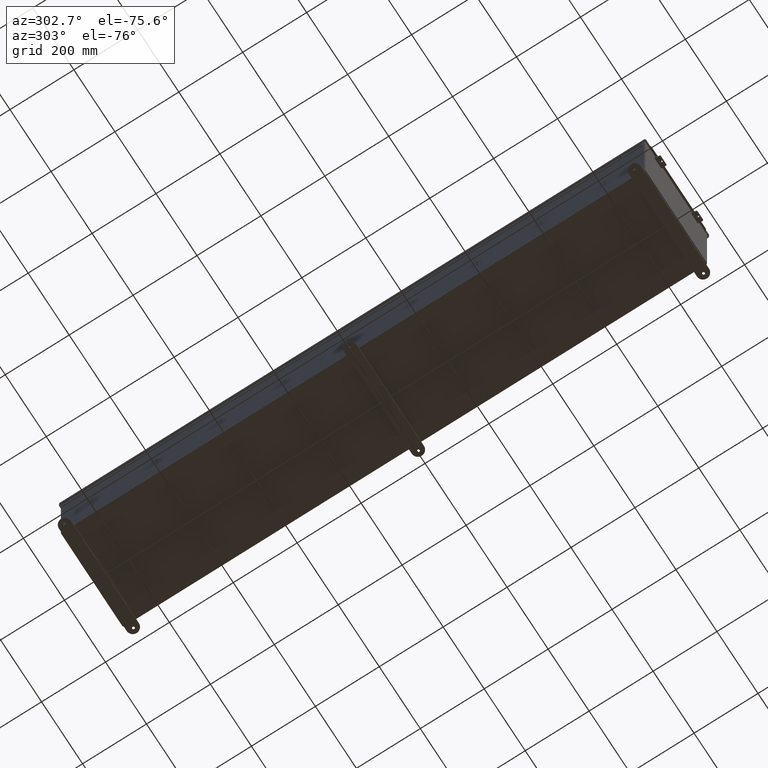
[diagram: clean part render]
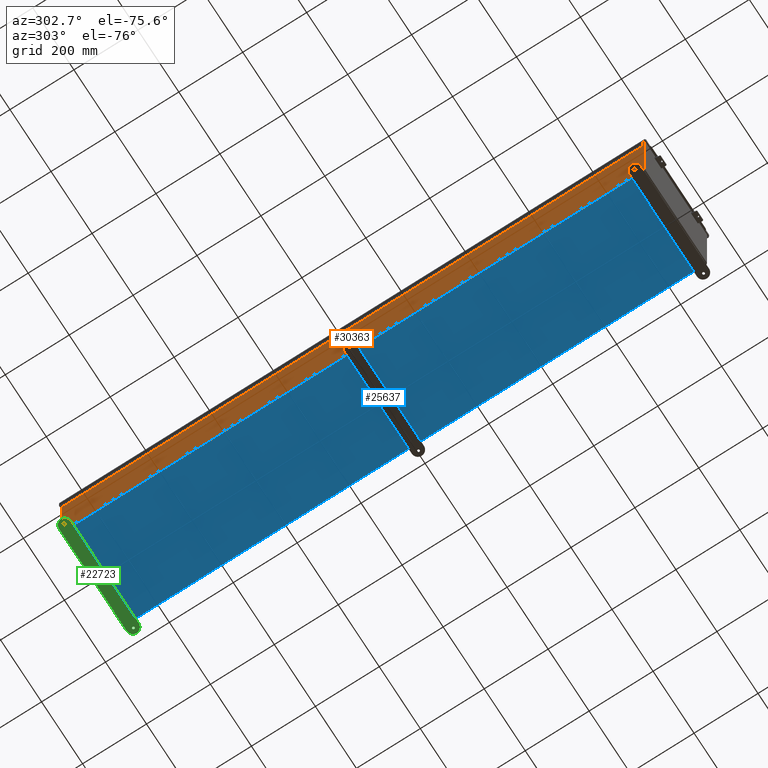
[diagram: same view with three faces highlighted in distinct colors, each labeled with its STEP entity id]
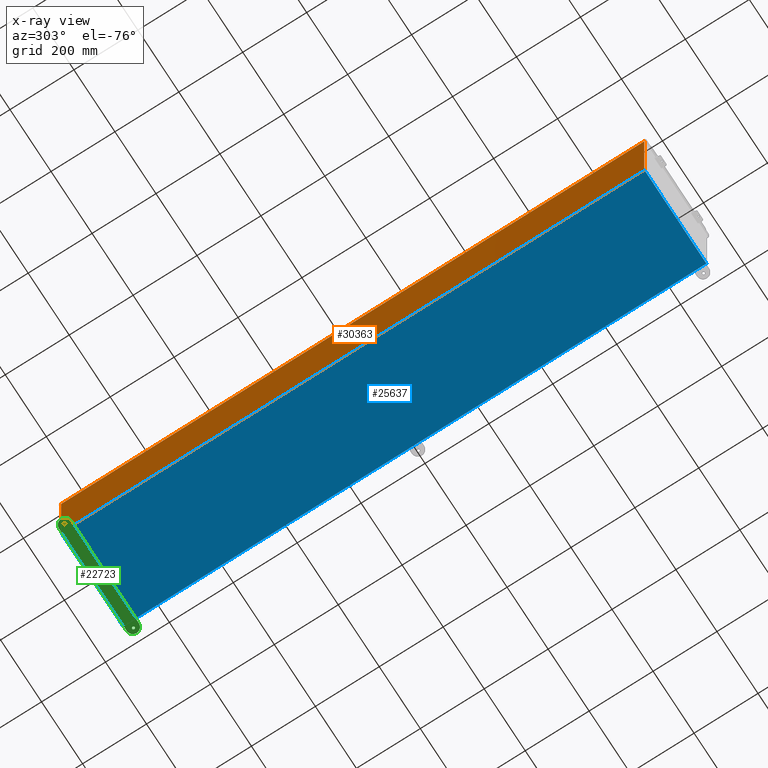
[diagram: x-ray of the same camera — body ghosted, the three highlighted faces saturated]
A machine part, auxiliary view with three faces highlighted in distinct colors.
The next image is the same camera in x-ray (body ghosted, the three faces saturated) — at least one of them is partly hidden behind the body in this view.
Their STEP definitions:

[orange] entity #30363 — the highlighted planar face has unit normal (1, 0, 0).
#226 = CARTESIAN_POINT ( 'NONE',  ( -6.000000000000003600, -35.92529999999999300, 0.01299999999999984300 ) ) ;
#1459 = AXIS2_PLACEMENT_3D ( 'NONE', #49373, #25940, #2566 ) ;
#1661 = EDGE_CURVE ( 'NONE', #43706, #24146, #9807, .T. ) ;
#2566 = DIRECTION ( 'NONE',  ( 3.503965158194251300E-015, 0.0000000000000000000, -1.000000000000000000 ) ) ;
#5055 = VERTEX_POINT ( 'NONE', #226 ) ;
#8845 = ORIENTED_EDGE ( 'NONE', *, *, #1661, .T. ) ;
#8897 = CARTESIAN_POINT ( 'NONE',  ( -6.000000000000041700, -35.92529999999999300, 11.83760000000000000 ) ) ;
#9807 = LINE ( 'NONE', #21372, #31812 ) ;
#10501 = CARTESIAN_POINT ( 'NONE',  ( -6.000000000000045300, 35.92530000000001400, 11.83760000000000000 ) ) ;
#12172 = ORIENTED_EDGE ( 'NONE', *, *, #27853, .F. ) ;
#12729 = DIRECTION ( 'NONE',  ( -0.0000000000000000000, 1.000000000000000000, -0.0000000000000000000 ) ) ;
#14883 = ORIENTED_EDGE ( 'NONE', *, *, #37825, .T. ) ;
#16356 = LINE ( 'NONE', #43945, #25499 ) ;
#16835 = CARTESIAN_POINT ( 'NONE',  ( -6.000000000000003600, 35.92530000000001400, 0.01299999999999984300 ) ) ;
#18017 = ORIENTED_EDGE ( 'NONE', *, *, #35672, .T. ) ;
#19184 = CARTESIAN_POINT ( 'NONE',  ( -6.000000000000041700, -35.92529999999996400, 11.83760000000000000 ) ) ;
#21253 = VECTOR ( 'NONE', #41831, 39.37007874015748100 ) ;
#21372 = CARTESIAN_POINT ( 'NONE',  ( -6.000000000000003600, 35.92530000000001400, -2.128280327564064900E-014 ) ) ;
#22772 = VERTEX_POINT ( 'NONE', #19184 ) ;
#24146 = VERTEX_POINT ( 'NONE', #16835 ) ;
#25263 = DIRECTION ( 'NONE',  ( 3.503965158194252100E-015, 0.0000000000000000000, -1.000000000000000000 ) ) ;
#25499 = VECTOR ( 'NONE', #12729, 39.37007874015748100 ) ;
#25940 = DIRECTION ( 'NONE',  ( 1.000000000000000000, 0.0000000000000000000, 3.503965158194251300E-015 ) ) ;
#27853 = EDGE_CURVE ( 'NONE', #5055, #24146, #16356, .T. ) ;
#30363 = ADVANCED_FACE ( 'NONE', ( #49096 ), #41488, .F. ) ;
#31640 = LINE ( 'NONE', #45745, #21253 ) ;
#31812 = VECTOR ( 'NONE', #25263, 39.37007874015748100 ) ;
#32302 = DIRECTION ( 'NONE',  ( 0.0000000000000000000, 1.000000000000000000, 0.0000000000000000000 ) ) ;
#35672 = EDGE_CURVE ( 'NONE', #5055, #22772, #31640, .T. ) ;
#37825 = EDGE_CURVE ( 'NONE', #22772, #43706, #39936, .T. ) ;
#38575 = EDGE_LOOP ( 'NONE', ( #14883, #8845, #12172, #18017 ) ) ;
#38694 = VECTOR ( 'NONE', #32302, 39.37007874015748100 ) ;
#39936 = LINE ( 'NONE', #8897, #38694 ) ;
#41488 = PLANE ( 'NONE',  #1459 ) ;
#41831 = DIRECTION ( 'NONE',  ( -3.503965158194252100E-015, 0.0000000000000000000, 1.000000000000000000 ) ) ;
#43706 = VERTEX_POINT ( 'NONE', #10501 ) ;
#43945 = CARTESIAN_POINT ( 'NONE',  ( -6.000000000000003600, 35.92530000000001400, 0.01299999999999984300 ) ) ;
#45745 = CARTESIAN_POINT ( 'NONE',  ( -6.000000000000003600, -35.92529999999999300, -2.128280327564064900E-014 ) ) ;
#49096 = FACE_OUTER_BOUND ( 'NONE', #38575, .T. ) ;
#49373 = CARTESIAN_POINT ( 'NONE',  ( -6.000000000000003600, 0.0000000000000000000, -2.128280327564064900E-014 ) ) ;

[blue] entity #25637 — the highlighted planar face has unit normal (0, 0, -1).
#8 = FACE_OUTER_BOUND ( 'NONE', #44867, .T. ) ;
#3283 = VECTOR ( 'NONE', #31354, 39.37007874015748100 ) ;
#3633 = ORIENTED_EDGE ( 'NONE', *, *, #13654, .T. ) ;
#3835 = LINE ( 'NONE', #5227, #13002 ) ;
#5227 = CARTESIAN_POINT ( 'NONE',  ( -6.000000000000003600, -35.92529999999999300, -0.07470000000000000300 ) ) ;
#9035 = VERTEX_POINT ( 'NONE', #28716 ) ;
#12279 = DIRECTION ( 'NONE',  ( -1.000000000000000000, 0.0000000000000000000, -0.0000000000000000000 ) ) ;
#12393 = DIRECTION ( 'NONE',  ( -1.000000000000000000, -0.0000000000000000000, -0.0000000000000000000 ) ) ;
#13002 = VECTOR ( 'NONE', #28604, 39.37007874015748100 ) ;
#13111 = EDGE_CURVE ( 'NONE', #50163, #16119, #27517, .T. ) ;
#13434 = LINE ( 'NONE', #15756, #22579 ) ;
#13654 = EDGE_CURVE ( 'NONE', #50163, #9035, #13434, .T. ) ;
#13668 = LINE ( 'NONE', #27405, #3283 ) ;
#14004 = CARTESIAN_POINT ( 'NONE',  ( 5.912299999999996600, 35.92530000000001400, -0.07469999999999535300 ) ) ;
#14710 = VECTOR ( 'NONE', #12393, 39.37007874015748100 ) ;
#15756 = CARTESIAN_POINT ( 'NONE',  ( 5.912299999999996600, 35.92530000000001400, -0.07469999999999535300 ) ) ;
#16119 = VERTEX_POINT ( 'NONE', #38731 ) ;
#16143 = AXIS2_PLACEMENT_3D ( 'NONE', #31741, #35631, #12279 ) ;
#22579 = VECTOR ( 'NONE', #46799, 39.37007874015748100 ) ;
#23824 = CARTESIAN_POINT ( 'NONE',  ( -6.000000000000003600, 35.92530000000001400, -0.07470000000000000300 ) ) ;
#23957 = EDGE_CURVE ( 'NONE', #46556, #16119, #13668, .T. ) ;
#25637 = ADVANCED_FACE ( 'NONE', ( #8 ), #47254, .T. ) ;
#27405 = CARTESIAN_POINT ( 'NONE',  ( -5.912300000000003700, -35.92529999999999300, -0.07469999999999994700 ) ) ;
#27517 = LINE ( 'NONE', #23824, #14710 ) ;
#28604 = DIRECTION ( 'NONE',  ( 1.000000000000000000, 0.0000000000000000000, 0.0000000000000000000 ) ) ;
#28716 = CARTESIAN_POINT ( 'NONE',  ( 5.912299999999996600, -35.92529999999999300, -0.07470000000000000300 ) ) ;
#31354 = DIRECTION ( 'NONE',  ( -0.0000000000000000000, 1.000000000000000000, -0.0000000000000000000 ) ) ;
#31741 = CARTESIAN_POINT ( 'NONE',  ( 0.0000000000000000000, 0.0000000000000000000, -0.07470000000000000300 ) ) ;
#33516 = ORIENTED_EDGE ( 'NONE', *, *, #13111, .F. ) ;
#35631 = DIRECTION ( 'NONE',  ( 0.0000000000000000000, 0.0000000000000000000, -1.000000000000000000 ) ) ;
#38731 = CARTESIAN_POINT ( 'NONE',  ( -5.912300000000003700, 35.92530000000001400, -0.07470000000000000300 ) ) ;
#40172 = EDGE_CURVE ( 'NONE', #46556, #9035, #3835, .T. ) ;
#41355 = ORIENTED_EDGE ( 'NONE', *, *, #40172, .F. ) ;
#44166 = CARTESIAN_POINT ( 'NONE',  ( -5.912300000000003700, -35.92529999999999300, -0.07469999999999994700 ) ) ;
#44867 = EDGE_LOOP ( 'NONE', ( #33516, #3633, #41355, #45594 ) ) ;
#45594 = ORIENTED_EDGE ( 'NONE', *, *, #23957, .T. ) ;
#46556 = VERTEX_POINT ( 'NONE', #44166 ) ;
#46799 = DIRECTION ( 'NONE',  ( -0.0000000000000000000, -1.000000000000000000, -8.208677865577646300E-017 ) ) ;
#47254 = PLANE ( 'NONE',  #16143 ) ;
#50163 = VERTEX_POINT ( 'NONE', #14004 ) ;

[green] entity #22723 — the highlighted planar face has unit normal (0, -0, 1).
#2133 = EDGE_LOOP ( 'NONE', ( #27080, #48214, #11199, #39003, #36755 ) ) ;
#2596 = VERTEX_POINT ( 'NONE', #8961 ) ;
#3121 = AXIS2_PLACEMENT_3D ( 'NONE', #28590, #5217, #32527 ) ;
#3258 = DIRECTION ( 'NONE',  ( 1.000000000000000000, 0.0000000000000000000, 0.0000000000000000000 ) ) ;
#3503 = CARTESIAN_POINT ( 'NONE',  ( 6.500000000000000000, -0.3379059350503891300, 0.0000000000000000000 ) ) ;
#3546 = EDGE_CURVE ( 'NONE', #32158, #41940, #46923, .T. ) ;
#3615 = CARTESIAN_POINT ( 'NONE',  ( -6.781499999999999400, 0.4120940649496083700, 0.0000000000000000000 ) ) ;
#3870 = AXIS2_PLACEMENT_3D ( 'NONE', #18049, #45305, #21938 ) ;
#4915 = VERTEX_POINT ( 'NONE', #26729 ) ;
#5217 = DIRECTION ( 'NONE',  ( 0.0000000000000000000, 0.0000000000000000000, 1.000000000000000000 ) ) ;
#5752 = CARTESIAN_POINT ( 'NONE',  ( 6.625000000000000900, 0.4120940649496083700, 0.0000000000000000000 ) ) ;
#6719 = CIRCLE ( 'NONE', #25159, 0.1564999999999992800 ) ;
#6869 = CIRCLE ( 'NONE', #3870, 0.7500000000000015500 ) ;
#7538 = EDGE_CURVE ( 'NONE', #49078, #4915, #8000, .T. ) ;
#8000 = LINE ( 'NONE', #43133, #45872 ) ;
#8301 = CIRCLE ( 'NONE', #45131, 0.1564999999999992800 ) ;
#8896 = FACE_BOUND ( 'NONE', #17566, .T. ) ;
#8961 = CARTESIAN_POINT ( 'NONE',  ( 6.468500000000001500, 0.4120940649496083700, 0.0000000000000000000 ) ) ;
#9179 = CARTESIAN_POINT ( 'NONE',  ( 7.250000000000001800, 0.4120940649496125900, 0.0000000000000000000 ) ) ;
#9663 = DIRECTION ( 'NONE',  ( -1.000000000000000000, 0.0000000000000000000, 0.0000000000000000000 ) ) ;
#9973 = EDGE_LOOP ( 'NONE', ( #17154, #34321 ) ) ;
#10354 = EDGE_CURVE ( 'NONE', #18845, #2596, #8301, .T. ) ;
#10470 = CARTESIAN_POINT ( 'NONE',  ( 6.625000000000000900, 0.4120940649496083700, 0.0000000000000000000 ) ) ;
#10981 = PLANE ( 'NONE',  #19013 ) ;
#11092 = LINE ( 'NONE', #18782, #41016 ) ;
#11186 = CARTESIAN_POINT ( 'NONE',  ( -6.468500000000001500, 0.4120940649496083700, 0.0000000000000000000 ) ) ;
#11199 = ORIENTED_EDGE ( 'NONE', *, *, #7538, .T. ) ;
#11364 = FACE_BOUND ( 'NONE', #9973, .T. ) ;
#11422 = VERTEX_POINT ( 'NONE', #32177 ) ;
#14393 = DIRECTION ( 'NONE',  ( -1.000000000000000000, 0.0000000000000000000, 0.0000000000000000000 ) ) ;
#14825 = DIRECTION ( 'NONE',  ( 1.000000000000000000, -1.260852920152736700E-016, 0.0000000000000000000 ) ) ;
#15200 = DIRECTION ( 'NONE',  ( 0.0000000000000000000, 0.0000000000000000000, 1.000000000000000000 ) ) ;
#15790 = ORIENTED_EDGE ( 'NONE', *, *, #41677, .T. ) ;
#15820 = DIRECTION ( 'NONE',  ( -1.000000000000000000, -1.260852920152736700E-016, -0.0000000000000000000 ) ) ;
#17154 = ORIENTED_EDGE ( 'NONE', *, *, #33987, .F. ) ;
#17566 = EDGE_LOOP ( 'NONE', ( #39620, #15790 ) ) ;
#18049 = CARTESIAN_POINT ( 'NONE',  ( 6.500000000000000000, 0.4120940649496125900, 0.0000000000000000000 ) ) ;
#18782 = CARTESIAN_POINT ( 'NONE',  ( -6.500000000000000000, -0.3379059350503874600, 0.0000000000000000000 ) ) ;
#18845 = VERTEX_POINT ( 'NONE', #41422 ) ;
#18861 = DIRECTION ( 'NONE',  ( -0.0000000000000000000, 0.0000000000000000000, -1.000000000000000000 ) ) ;
#19013 = AXIS2_PLACEMENT_3D ( 'NONE', #42202, #18861, #46119 ) ;
#19194 = EDGE_CURVE ( 'NONE', #29042, #49078, #42244, .T. ) ;
#19279 = AXIS2_PLACEMENT_3D ( 'NONE', #50061, #26626, #3258 ) ;
#21938 = DIRECTION ( 'NONE',  ( -1.000000000000000000, 0.0000000000000000000, 0.0000000000000000000 ) ) ;
#22647 = DIRECTION ( 'NONE',  ( 0.0000000000000000000, 0.0000000000000000000, 1.000000000000000000 ) ) ;
#22723 = ADVANCED_FACE ( 'NONE', ( #29679, #11364, #8896 ), #10981, .F. ) ;
#25159 = AXIS2_PLACEMENT_3D ( 'NONE', #5752, #33048, #9663 ) ;
#26626 = DIRECTION ( 'NONE',  ( 0.0000000000000000000, 0.0000000000000000000, 1.000000000000000000 ) ) ;
#26729 = CARTESIAN_POINT ( 'NONE',  ( -6.500000000000000000, 1.162094064949612300, 0.0000000000000000000 ) ) ;
#26908 = CIRCLE ( 'NONE', #19279, 0.1564999999999992800 ) ;
#27080 = ORIENTED_EDGE ( 'NONE', *, *, #40327, .T. ) ;
#27764 = AXIS2_PLACEMENT_3D ( 'NONE', #46013, #22647, #49996 ) ;
#28590 = CARTESIAN_POINT ( 'NONE',  ( 6.500000000000000000, 0.4120940649496125900, 0.0000000000000000000 ) ) ;
#29042 = VERTEX_POINT ( 'NONE', #9179 ) ;
#29679 = FACE_OUTER_BOUND ( 'NONE', #2133, .T. ) ;
#32158 = VERTEX_POINT ( 'NONE', #3615 ) ;
#32177 = CARTESIAN_POINT ( 'NONE',  ( -6.500000000000000000, -0.3379059350503874600, 0.0000000000000000000 ) ) ;
#32527 = DIRECTION ( 'NONE',  ( -1.000000000000000000, 0.0000000000000000000, 0.0000000000000000000 ) ) ;
#32719 = EDGE_CURVE ( 'NONE', #11422, #38657, #11092, .T. ) ;
#33048 = DIRECTION ( 'NONE',  ( -0.0000000000000000000, -0.0000000000000000000, -1.000000000000000000 ) ) ;
#33987 = EDGE_CURVE ( 'NONE', #41940, #32158, #26908, .T. ) ;
#34321 = ORIENTED_EDGE ( 'NONE', *, *, #3546, .F. ) ;
#34630 = EDGE_CURVE ( 'NONE', #4915, #11422, #37807, .T. ) ;
#36755 = ORIENTED_EDGE ( 'NONE', *, *, #32719, .T. ) ;
#37335 = AXIS2_PLACEMENT_3D ( 'NONE', #38553, #15200, #42504 ) ;
#37757 = DIRECTION ( 'NONE',  ( -0.0000000000000000000, -0.0000000000000000000, -1.000000000000000000 ) ) ;
#37807 = CIRCLE ( 'NONE', #27764, 0.7499999999999993300 ) ;
#38553 = CARTESIAN_POINT ( 'NONE',  ( -6.625000000000000900, 0.4120940649496083700, 0.0000000000000000000 ) ) ;
#38657 = VERTEX_POINT ( 'NONE', #3503 ) ;
#39003 = ORIENTED_EDGE ( 'NONE', *, *, #34630, .T. ) ;
#39620 = ORIENTED_EDGE ( 'NONE', *, *, #10354, .T. ) ;
#40327 = EDGE_CURVE ( 'NONE', #38657, #29042, #6869, .T. ) ;
#41016 = VECTOR ( 'NONE', #14825, 39.37007874015748100 ) ;
#41422 = CARTESIAN_POINT ( 'NONE',  ( 6.781499999999999400, 0.4120940649496083700, 0.0000000000000000000 ) ) ;
#41677 = EDGE_CURVE ( 'NONE', #2596, #18845, #6719, .T. ) ;
#41940 = VERTEX_POINT ( 'NONE', #11186 ) ;
#42202 = CARTESIAN_POINT ( 'NONE',  ( 6.500000000000000000, 0.4120940649496125900, 0.0000000000000000000 ) ) ;
#42244 = CIRCLE ( 'NONE', #3121, 0.7500000000000015500 ) ;
#42504 = DIRECTION ( 'NONE',  ( 1.000000000000000000, 0.0000000000000000000, 0.0000000000000000000 ) ) ;
#43133 = CARTESIAN_POINT ( 'NONE',  ( -6.500000000000000000, 1.162094064949612300, 0.0000000000000000000 ) ) ;
#45131 = AXIS2_PLACEMENT_3D ( 'NONE', #10470, #37757, #14393 ) ;
#45305 = DIRECTION ( 'NONE',  ( 0.0000000000000000000, 0.0000000000000000000, 1.000000000000000000 ) ) ;
#45872 = VECTOR ( 'NONE', #15820, 39.37007874015748100 ) ;
#45982 = CARTESIAN_POINT ( 'NONE',  ( 6.500000000000000000, 1.162094064949614100, 0.0000000000000000000 ) ) ;
#46013 = CARTESIAN_POINT ( 'NONE',  ( -6.500000000000000000, 0.4120940649496124300, 0.0000000000000000000 ) ) ;
#46119 = DIRECTION ( 'NONE',  ( -1.000000000000000000, 0.0000000000000000000, 0.0000000000000000000 ) ) ;
#46923 = CIRCLE ( 'NONE', #37335, 0.1564999999999992800 ) ;
#48214 = ORIENTED_EDGE ( 'NONE', *, *, #19194, .T. ) ;
#49078 = VERTEX_POINT ( 'NONE', #45982 ) ;
#49996 = DIRECTION ( 'NONE',  ( 1.000000000000000000, 0.0000000000000000000, 0.0000000000000000000 ) ) ;
#50061 = CARTESIAN_POINT ( 'NONE',  ( -6.625000000000000900, 0.4120940649496083700, 0.0000000000000000000 ) ) ;